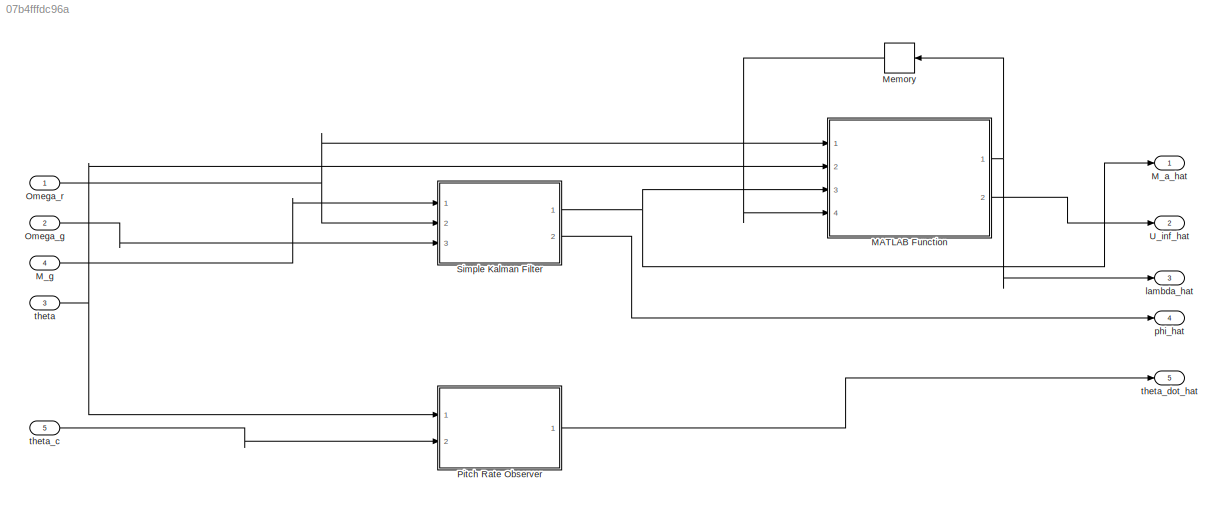
MODEL slx_07b4fffdc96a
KIND model
CONFIG AbsTol = auto
CONFIG EnableMultiTasking = off
CONFIG FixedStep = DT
CONFIG MaxStep = auto
CONFIG MinStep = auto
CONFIG RelTol = 1e-3
CONFIG SampleTimeConstraint = Unconstrained
CONFIG Solver = FixedStepAuto
CONFIG SolverName = FixedStepAuto
CONFIG StartTime = 0.0
CONFIG StopTime = 10.0
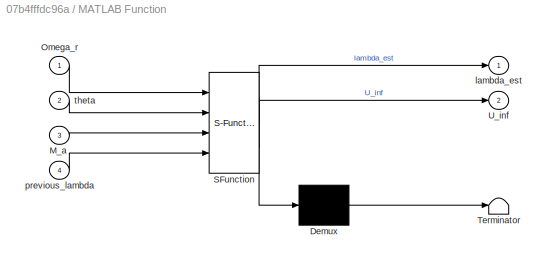
BLOCK [SubSystem] MATLAB Function
  ErrorFcn = Stateflow.Translate.translate
  PermitHierarchicalResolution = ExplicitOnly
  Ports = [4, 2]
  RequestExecContextInheritance = off
  SFBlockType = MATLAB Function
  TreatAsAtomicUnit = on
BLOCK [Demux] MATLAB Function/ Demux 
  Outputs = 1
  Ports = [1, 1]
BLOCK [S-Function] MATLAB Function/ SFunction 
  EnableBusSupport = on
  FunctionName = sf_sfun
  Parameters = tp
  PortCounts = [4 3]
  Ports = [4, 3]
  SFcnIsStateOwnerBlock = off
  SFunctionDeploymentMode = off
  Tag = Stateflow S-Function 3
BLOCK [Terminator] MATLAB Function/ Terminator 
BLOCK [Inport] MATLAB Function/M_a
  Port = 3
BLOCK [Inport] MATLAB Function/Omega_r
BLOCK [Outport] MATLAB Function/U_inf
  Port = 2
BLOCK [Outport] MATLAB Function/lambda_est
BLOCK [Inport] MATLAB Function/previous_lambda
  Port = 4
BLOCK [Inport] MATLAB Function/theta
  Port = 2
BLOCK [Outport] M_a_hat
BLOCK [Inport] M_g
  Port = 4
BLOCK [Memory] Memory
  InitialCondition = tp.lambda_star
  NameLocation = top
BLOCK [Inport] Omega_g
  Port = 2
BLOCK [Inport] Omega_r
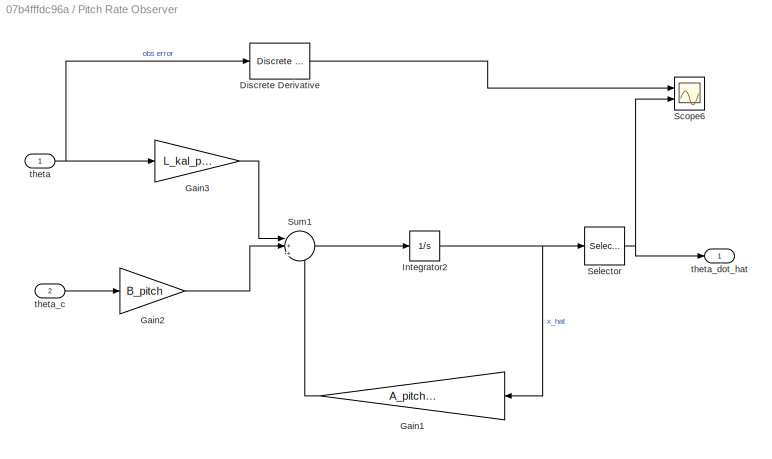
BLOCK [SubSystem] Pitch Rate Observer
  Ports = [2, 1]
  RequestExecContextInheritance = off
  TreatAsAtomicUnit = on
BLOCK [Reference] Pitch Rate Observer/Discrete Derivative  REF=simulink/Discrete/Discrete Derivative
  Ports = [1, 1]
  SourceBlock = simulink/Discrete/Discrete Derivative
  SourceProductBaseCode = SL
  SourceType = Discrete Derivative
BLOCK [Gain] Pitch Rate Observer/Gain1
  Gain = A_pitch - L_kal_pitch*C_pitch
  Multiplication = Matrix(K*u)
  NameLocation = top
BLOCK [Gain] Pitch Rate Observer/Gain2
  Gain = B_pitch
BLOCK [Gain] Pitch Rate Observer/Gain3
  Gain = L_kal_pitch
BLOCK [Integrator] Pitch Rate Observer/Integrator2
  InitialCondition = ini_pitch
  Ports = [1, 1]
BLOCK [Scope] Pitch Rate Observer/Scope6
  Floating = off
  NumInputPorts = 2
  Ports = [2]
  ScopeSpecificationString = Simulink.scopes.TimeScopeBlockCfg('CurrentConfiguration', extmgr.ConfigurationSet(extmgr.Configuration('Core','General UI',true),extmgr.Configuration('Core','Source UI',true),extmgr.Configuration('Sources','WiredSimulink',true,'DataLoggingVariableName','ScopeData7'),extmgr.Configuration('Visuals','Time Domain',true,'SerializedDisplays',{struct('MinYLimReal','-9416912.99793','MaxYLimReal','15248845...<+1510ch>
BLOCK [Selector] Pitch Rate Observer/Selector
  IndexOptions = Index vector (dialog)
  Indices = [2]
  InputPortWidth = 2
  OutputSizes = 1
  Ports = [1, 1]
BLOCK [Sum] Pitch Rate Observer/Sum1
  Inputs = |+++
  Ports = [3, 1]
BLOCK [Inport] Pitch Rate Observer/theta
BLOCK [Inport] Pitch Rate Observer/theta_c
  Port = 2
BLOCK [Outport] Pitch Rate Observer/theta_dot_hat
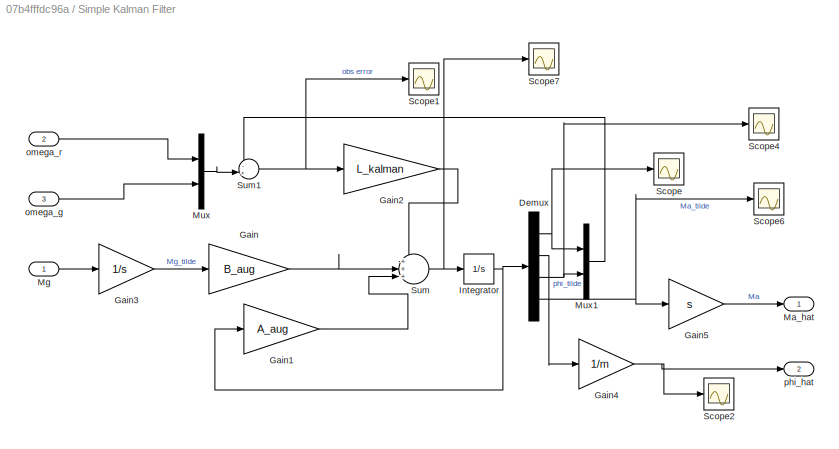
BLOCK [SubSystem] Simple Kalman Filter
  Ports = [3, 2]
  RequestExecContextInheritance = off
  TreatAsAtomicUnit = on
BLOCK [Demux] Simple Kalman Filter/Demux
  Ports = [1, 4]
BLOCK [Gain] Simple Kalman Filter/Gain
  Gain = B_aug
  Multiplication = Matrix(K*u) (u vector)
BLOCK [Gain] Simple Kalman Filter/Gain1
  Gain = A_aug
  Multiplication = Matrix(K*u) (u vector)
BLOCK [Gain] Simple Kalman Filter/Gain2
  Gain = L_kalman
  Multiplication = Matrix(K*u) (u vector)
BLOCK [Gain] Simple Kalman Filter/Gain3
  Gain = 1/s
BLOCK [Gain] Simple Kalman Filter/Gain4
  Gain = 1/m
BLOCK [Gain] Simple Kalman Filter/Gain5
  Gain = s
BLOCK [Integrator] Simple Kalman Filter/Integrator
  InitialCondition = [Omega_r_0; Omega_g_0; phi_0; ini_torque]
  Ports = [1, 1]
BLOCK [Outport] Simple Kalman Filter/Ma_hat
BLOCK [Inport] Simple Kalman Filter/Mg
BLOCK [Mux] Simple Kalman Filter/Mux
  DisplayOption = bar
  Inputs = 2
  Ports = [2, 1]
BLOCK [Mux] Simple Kalman Filter/Mux1
  DisplayOption = bar
  Inputs = 2
  Ports = [2, 1]
BLOCK [Scope] Simple Kalman Filter/Scope
  Floating = off
  NumInputPorts = 1
  Ports = [1]
  ScopeSpecificationString = Simulink.scopes.TimeScopeBlockCfg('CurrentConfiguration', extmgr.ConfigurationSet(extmgr.Configuration('Core','General UI',true),extmgr.Configuration('Core','Source UI',true),extmgr.Configuration('Sources','WiredSimulink',true,'DataLoggingVariableName','ScopeData1'),extmgr.Configuration('Visuals','Time Domain',true,'SerializedDisplays',{struct('MinYLimReal','174650662932937009187995337907103858968...<+3766ch>
BLOCK [Scope] Simple Kalman Filter/Scope1
  Floating = off
  NumInputPorts = 1
  Ports = [1]
  ScopeSpecificationString = Simulink.scopes.TimeScopeBlockCfg('CurrentConfiguration', extmgr.ConfigurationSet(extmgr.Configuration('Core','General UI',true),extmgr.Configuration('Core','Source UI',true),extmgr.Configuration('Sources','WiredSimulink',true,'DataLoggingVariableName','ScopeData3'),extmgr.Configuration('Visuals','Time Domain',true,'SerializedDisplays',{struct('MinYLimReal','-34188775865095840942592204182474947627...<+3850ch>
BLOCK [Scope] Simple Kalman Filter/Scope2
  Floating = off
  NumInputPorts = 1
  Ports = [1]
  ScopeSpecificationString = Simulink.scopes.TimeScopeBlockCfg('CurrentConfiguration', extmgr.ConfigurationSet(extmgr.Configuration('Core','General UI',true),extmgr.Configuration('Core','Source UI',true),extmgr.Configuration('Sources','WiredSimulink',true,'DataLoggingVariableName','ScopeData3'),extmgr.Configuration('Visuals','Time Domain',true,'SerializedDisplays',{struct('MinYLimReal','186420814673027117024912891249444004512...<+3760ch>
BLOCK [Scope] Simple Kalman Filter/Scope4
  Floating = off
  NumInputPorts = 1
  Ports = [1]
  ScopeSpecificationString = Simulink.scopes.TimeScopeBlockCfg('CurrentConfiguration', extmgr.ConfigurationSet(extmgr.Configuration('Core','General UI',true),extmgr.Configuration('Core','Source UI',true),extmgr.Configuration('Sources','WiredSimulink',true,'DataLoggingVariableName','ScopeData5'),extmgr.Configuration('Visuals','Time Domain',true,'SerializedDisplays',{struct('MinYLimReal','-13940184808726983282396653676879941005...<+3815ch>
BLOCK [Scope] Simple Kalman Filter/Scope6
  Floating = off
  NumInputPorts = 1
  Ports = [1]
  ScopeSpecificationString = Simulink.scopes.TimeScopeBlockCfg('CurrentConfiguration', extmgr.ConfigurationSet(extmgr.Configuration('Core','General UI',true),extmgr.Configuration('Core','Source UI',true),extmgr.Configuration('Sources','WiredSimulink',true,'DataLoggingVariableName','ScopeData7'),extmgr.Configuration('Visuals','Time Domain',true,'SerializedDisplays',{struct('MinYLimReal','-50080287574025261477966326789360032476...<+3779ch>
BLOCK [Scope] Simple Kalman Filter/Scope7
  Floating = off
  NumInputPorts = 1
  Ports = [1]
  ScopeSpecificationString = Simulink.scopes.TimeScopeBlockCfg('CurrentConfiguration', extmgr.ConfigurationSet(extmgr.Configuration('Core','General UI',true),extmgr.Configuration('Core','Source UI',true),extmgr.Configuration('Sources','WiredSimulink',true,'DataLoggingVariableName','ScopeData8'),extmgr.Configuration('Visuals','Time Domain',true,'SerializedDisplays',{struct('MinYLimReal','-11346560433171544575240289755481146955...<+3907ch>
BLOCK [Sum] Simple Kalman Filter/Sum
  Inputs = +++|
  Ports = [3, 1]
BLOCK [Sum] Simple Kalman Filter/Sum1
  Inputs = -+|
  Ports = [2, 1]
BLOCK [Inport] Simple Kalman Filter/omega_g
  Port = 3
BLOCK [Inport] Simple Kalman Filter/omega_r
  Port = 2
BLOCK [Outport] Simple Kalman Filter/phi_hat
  Port = 2
BLOCK [Outport] U_inf_hat
  Port = 2
BLOCK [Outport] lambda_hat
  Port = 3
BLOCK [Outport] phi_hat
  Port = 4
BLOCK [Inport] theta
  Port = 3
BLOCK [Inport] theta_c
  Port = 5
BLOCK [Outport] theta_dot_hat
  Port = 5
NET MATLAB Function:1 -> Memory:1, lambda_hat:1
LINE MATLAB Function:2 -> U_inf_hat:1
LINE M_g:1 -> Simple Kalman Filter:1
LINE Memory:1 -> MATLAB Function:4
LINE Omega_g:1 -> Simple Kalman Filter:3
NET Omega_r:1 -> MATLAB Function:1, Simple Kalman Filter:2
LINE Pitch Rate Observer/Discrete Derivative:1 -> Pitch Rate Observer/Scope6:1
LINE Pitch Rate Observer/Gain1:1 -> Pitch Rate Observer/Sum1:3
LINE Pitch Rate Observer/Gain2:1 -> Pitch Rate Observer/Sum1:2
LINE Pitch Rate Observer/Gain3:1 -> Pitch Rate Observer/Sum1:1
NET Pitch Rate Observer/Integrator2:1 -> Pitch Rate Observer/Gain1:1, Pitch Rate Observer/Selector:1
NET Pitch Rate Observer/Selector:1 -> Pitch Rate Observer/Scope6:2, Pitch Rate Observer/theta_dot_hat:1
LINE Pitch Rate Observer/Sum1:1 -> Pitch Rate Observer/Integrator2:1
NET Pitch Rate Observer/theta:1 -> Pitch Rate Observer/Discrete Derivative:1, Pitch Rate Observer/Gain3:1
LINE Pitch Rate Observer/theta_c:1 -> Pitch Rate Observer/Gain2:1
LINE Pitch Rate Observer:1 -> theta_dot_hat:1
NET Simple Kalman Filter/Demux:1 -> Simple Kalman Filter/Mux1:1, Simple Kalman Filter/Scope:1
LINE Simple Kalman Filter/Demux:2 -> Simple Kalman Filter/Gain4:1
NET Simple Kalman Filter/Demux:3 -> Simple Kalman Filter/Mux1:2, Simple Kalman Filter/Scope4:1
NET Simple Kalman Filter/Demux:4 -> Simple Kalman Filter/Gain5:1, Simple Kalman Filter/Scope6:1
LINE Simple Kalman Filter/Gain1:1 -> Simple Kalman Filter/Sum:3
LINE Simple Kalman Filter/Gain2:1 -> Simple Kalman Filter/Sum:1
LINE Simple Kalman Filter/Gain3:1 -> Simple Kalman Filter/Gain:1
NET Simple Kalman Filter/Gain4:1 -> Simple Kalman Filter/Scope2:1, Simple Kalman Filter/phi_hat:1
LINE Simple Kalman Filter/Gain5:1 -> Simple Kalman Filter/Ma_hat:1
LINE Simple Kalman Filter/Gain:1 -> Simple Kalman Filter/Sum:2
NET Simple Kalman Filter/Integrator:1 -> Simple Kalman Filter/Demux:1, Simple Kalman Filter/Gain1:1
LINE Simple Kalman Filter/Mg:1 -> Simple Kalman Filter/Gain3:1
LINE Simple Kalman Filter/Mux1:1 -> Simple Kalman Filter/Sum1:1
LINE Simple Kalman Filter/Mux:1 -> Simple Kalman Filter/Sum1:2
NET Simple Kalman Filter/Sum1:1 -> Simple Kalman Filter/Gain2:1, Simple Kalman Filter/Scope1:1
NET Simple Kalman Filter/Sum:1 -> Simple Kalman Filter/Integrator:1, Simple Kalman Filter/Scope7:1
LINE Simple Kalman Filter/omega_g:1 -> Simple Kalman Filter/Mux:2
LINE Simple Kalman Filter/omega_r:1 -> Simple Kalman Filter/Mux:1
NET Simple Kalman Filter:1 -> MATLAB Function:3, M_a_hat:1
LINE Simple Kalman Filter:2 -> phi_hat:1
NET theta:1 -> MATLAB Function:2, Pitch Rate Observer:1
LINE theta_c:1 -> Pitch Rate Observer:2
note: NET lines group one-source signal fan-out (src -> all destinations, sorted); 1:1 wires keep LINE
CHART MATLAB Function states=1 transitions=1
  STATE_LABEL 'eML_blk_kernel()'
  STATE_LABEL 'SCRIPT:\n% Computes the windspeed using a secant method with given torque\n% estimation, rotor speed, and blade pitch angle\nfunction [lambda_est, U_inf] = torque_to_windspeed(Omega_r, theta, M_a, tp, previous_lambda)\n\ntheta = max(theta, 0);\n\n% constant in the equation Cp/lambda^3 = C\nC = 2*M_a/(tp.rho*pi*(tp.R)^5*(Omega_r)^2);\n\n% Now find the root of f(lambda) = Cp/lambda^3 - C\nf = @(lambda) interp2...<+393ch>'
CHART  states=0 transitions=0
